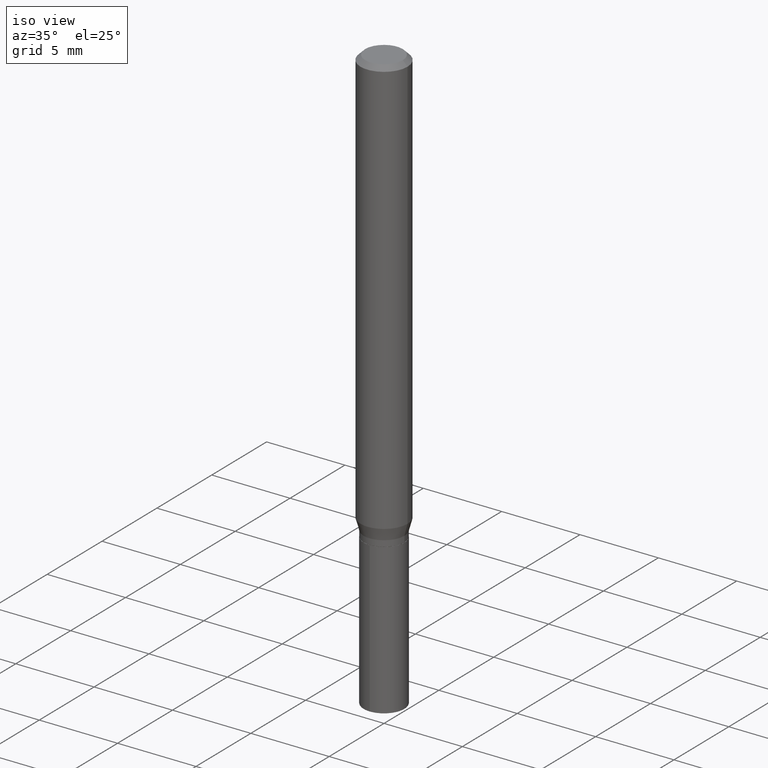
[diagram: clean part render]
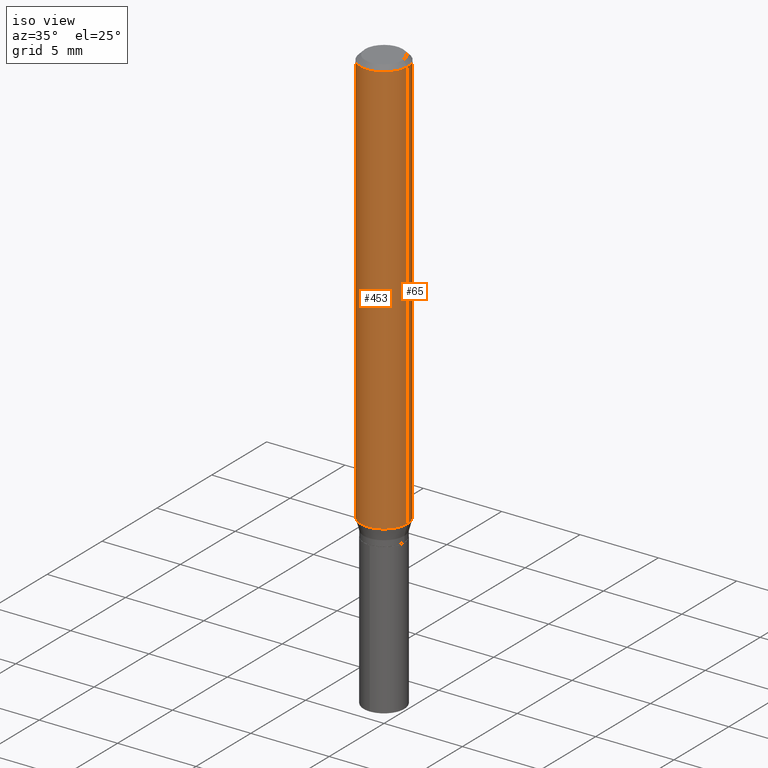
[diagram: same view with one multi-face feature highlighted, each face labeled with its STEP entity id]
A machine part, iso view. The highlighted faces form ONE feature: a constant-radius fillet chain: 2 tangent blend faces with common blend radius 1.4999 mm. The faces share edges in the B-rep.
Their STEP definitions:
[1] entity #453 (Cylinder):
#11 = AXIS2_PLACEMENT_3D ( 'NONE', #414, #449, #260 ) ;
#13 = ORIENTED_EDGE ( 'NONE', *, *, #384, .F. ) ;
#22 = DIRECTION ( 'NONE',  ( -2.445468806185136597E-29, 3.491481338843145583E-15, 1.000000000000000000 ) ) ;
#44 = CARTESIAN_POINT ( 'NONE',  ( 2.567261470165268831E-29, -3.665368984606243258E-15, -1.049803401160583904 ) ) ;
#47 = DIRECTION ( 'NONE',  ( 1.000000000000000000, -6.982962677686265133E-15, 0.000000000000000000 ) ) ;
#49 = EDGE_CURVE ( 'NONE', #295, #358, #78, .T. ) ;
#78 = LINE ( 'NONE', #486, #163 ) ;
#86 = DIRECTION ( 'NONE',  ( -2.445468806185136597E-29, 3.491481338843145583E-15, 1.000000000000000000 ) ) ;
#93 = CARTESIAN_POINT ( 'NONE',  ( -0.05905000000000013016, -3.245793499139903371E-15, -1.049803401160583904 ) ) ;
#129 = ORIENTED_EDGE ( 'NONE', *, *, #397, .F. ) ;
#163 = VECTOR ( 'NONE', #455, 39.37007874015748143 ) ;
#167 = CARTESIAN_POINT ( 'NONE',  ( -0.05905000000000006771, 4.195754854663396409E-16, -2.904631170795525045E-30 ) ) ;
#171 = EDGE_CURVE ( 'NONE', #335, #295, #225, .T. ) ;
#177 = DIRECTION ( 'NONE',  ( -2.445468806185136877E-29, 3.491481338843145188E-15, 1.000000000000000000 ) ) ;
#225 = CIRCLE ( 'NONE', #323, 0.05905000000000013016 ) ;
#249 = FACE_OUTER_BOUND ( 'NONE', #283, .T. ) ;
#250 = ORIENTED_EDGE ( 'NONE', *, *, #49, .T. ) ;
#260 = DIRECTION ( 'NONE',  ( 1.000000000000000000, -6.982962677686266711E-15, 4.876176775795936353E-29 ) ) ;
#283 = EDGE_LOOP ( 'NONE', ( #129, #481, #250, #13 ) ) ;
#286 = CYLINDRICAL_SURFACE ( 'NONE', #11, 0.05905000000000006771 ) ;
#294 = LINE ( 'NONE', #167, #363 ) ;
#295 = VERTEX_POINT ( 'NONE', #310 ) ;
#310 = CARTESIAN_POINT ( 'NONE',  ( 0.05905000000000013016, -4.077712930723618179E-15, -1.049803401160583904 ) ) ;
#323 = AXIS2_PLACEMENT_3D ( 'NONE', #44, #86, #47 ) ;
#335 = VERTEX_POINT ( 'NONE', #93 ) ;
#343 = AXIS2_PLACEMENT_3D ( 'NONE', #482, #22, #435 ) ;
#358 = VERTEX_POINT ( 'NONE', #476 ) ;
#363 = VECTOR ( 'NONE', #177, 39.37007874015748143 ) ;
#379 = CIRCLE ( 'NONE', #343, 0.05904999999999999832 ) ;
#384 = EDGE_CURVE ( 'NONE', #393, #358, #379, .T. ) ;
#393 = VERTEX_POINT ( 'NONE', #443 ) ;
#397 = EDGE_CURVE ( 'NONE', #335, #393, #294, .T. ) ;
#414 = CARTESIAN_POINT ( 'NONE',  ( 0.000000000000000000, 0.000000000000000000, 0.000000000000000000 ) ) ;
#435 = DIRECTION ( 'NONE',  ( 1.000000000000000000, -6.982962677686266711E-15, 0.000000000000000000 ) ) ;
#443 = CARTESIAN_POINT ( 'NONE',  ( -0.05904999999999999832, -1.433726204142650015E-15, -0.01181000000000007218 ) ) ;
#449 = DIRECTION ( 'NONE',  ( -2.445468806185136597E-29, 3.491481338843145583E-15, 1.000000000000000000 ) ) ;
#453 = ADVANCED_FACE ( 'NONE', ( #249 ), #286, .T. ) ;
#455 = DIRECTION ( 'NONE',  ( -2.445468806185136877E-29, 3.491481338843145188E-15, 1.000000000000000000 ) ) ;
#476 = CARTESIAN_POINT ( 'NONE',  ( 0.05904999999999999832, -4.535783407291118600E-16, -0.01181000000000007218 ) ) ;
#481 = ORIENTED_EDGE ( 'NONE', *, *, #171, .T. ) ;
#482 = CARTESIAN_POINT ( 'NONE',  ( 2.888098660104664204E-31, -4.123439461173780263E-17, -0.01181000000000007218 ) ) ;
#486 = CARTESIAN_POINT ( 'NONE',  ( 0.05905000000000006771, -4.123439461173745257E-16, 2.879382386107503723E-30 ) ) ;
[2] entity #65 (Cylinder):
#6 = CIRCLE ( 'NONE', #488, 0.05904999999999999832 ) ;
#25 = ORIENTED_EDGE ( 'NONE', *, *, #49, .F. ) ;
#27 = ORIENTED_EDGE ( 'NONE', *, *, #43, .T. ) ;
#43 = EDGE_CURVE ( 'NONE', #295, #335, #142, .T. ) ;
#49 = EDGE_CURVE ( 'NONE', #295, #358, #78, .T. ) ;
#65 = ADVANCED_FACE ( 'NONE', ( #450 ), #417, .T. ) ;
#72 = CARTESIAN_POINT ( 'NONE',  ( 0.000000000000000000, 0.000000000000000000, 0.000000000000000000 ) ) ;
#78 = LINE ( 'NONE', #486, #163 ) ;
#93 = CARTESIAN_POINT ( 'NONE',  ( -0.05905000000000013016, -3.245793499139903371E-15, -1.049803401160583904 ) ) ;
#132 = CARTESIAN_POINT ( 'NONE',  ( 2.888098660104664204E-31, -4.123439461173780263E-17, -0.01181000000000007218 ) ) ;
#142 = CIRCLE ( 'NONE', #487, 0.05905000000000013016 ) ;
#163 = VECTOR ( 'NONE', #455, 39.37007874015748143 ) ;
#167 = CARTESIAN_POINT ( 'NONE',  ( -0.05905000000000006771, 4.195754854663396409E-16, -2.904631170795525045E-30 ) ) ;
#168 = EDGE_LOOP ( 'NONE', ( #27, #372, #292, #25 ) ) ;
#177 = DIRECTION ( 'NONE',  ( -2.445468806185136877E-29, 3.491481338843145188E-15, 1.000000000000000000 ) ) ;
#181 = DIRECTION ( 'NONE',  ( 1.000000000000000000, -6.982962677686265133E-15, 0.000000000000000000 ) ) ;
#191 = DIRECTION ( 'NONE',  ( -2.445468806185136597E-29, 3.491481338843145583E-15, 1.000000000000000000 ) ) ;
#224 = DIRECTION ( 'NONE',  ( 1.000000000000000000, -6.982962677686266711E-15, 4.876176775795936353E-29 ) ) ;
#244 = DIRECTION ( 'NONE',  ( -2.445468806185136597E-29, 3.491481338843145583E-15, 1.000000000000000000 ) ) ;
#292 = ORIENTED_EDGE ( 'NONE', *, *, #430, .F. ) ;
#294 = LINE ( 'NONE', #167, #363 ) ;
#295 = VERTEX_POINT ( 'NONE', #310 ) ;
#309 = DIRECTION ( 'NONE',  ( -2.445468806185136597E-29, 3.491481338843145583E-15, 1.000000000000000000 ) ) ;
#310 = CARTESIAN_POINT ( 'NONE',  ( 0.05905000000000013016, -4.077712930723618179E-15, -1.049803401160583904 ) ) ;
#313 = AXIS2_PLACEMENT_3D ( 'NONE', #72, #191, #224 ) ;
#335 = VERTEX_POINT ( 'NONE', #93 ) ;
#358 = VERTEX_POINT ( 'NONE', #476 ) ;
#363 = VECTOR ( 'NONE', #177, 39.37007874015748143 ) ;
#372 = ORIENTED_EDGE ( 'NONE', *, *, #397, .T. ) ;
#393 = VERTEX_POINT ( 'NONE', #443 ) ;
#397 = EDGE_CURVE ( 'NONE', #335, #393, #294, .T. ) ;
#417 = CYLINDRICAL_SURFACE ( 'NONE', #313, 0.05905000000000006771 ) ;
#430 = EDGE_CURVE ( 'NONE', #358, #393, #6, .T. ) ;
#443 = CARTESIAN_POINT ( 'NONE',  ( -0.05904999999999999832, -1.433726204142650015E-15, -0.01181000000000007218 ) ) ;
#450 = FACE_OUTER_BOUND ( 'NONE', #168, .T. ) ;
#455 = DIRECTION ( 'NONE',  ( -2.445468806185136877E-29, 3.491481338843145188E-15, 1.000000000000000000 ) ) ;
#457 = CARTESIAN_POINT ( 'NONE',  ( 2.567261470165268831E-29, -3.665368984606243258E-15, -1.049803401160583904 ) ) ;
#472 = DIRECTION ( 'NONE',  ( 1.000000000000000000, -6.982962677686266711E-15, 0.000000000000000000 ) ) ;
#476 = CARTESIAN_POINT ( 'NONE',  ( 0.05904999999999999832, -4.535783407291118600E-16, -0.01181000000000007218 ) ) ;
#486 = CARTESIAN_POINT ( 'NONE',  ( 0.05905000000000006771, -4.123439461173745257E-16, 2.879382386107503723E-30 ) ) ;
#487 = AXIS2_PLACEMENT_3D ( 'NONE', #457, #309, #181 ) ;
#488 = AXIS2_PLACEMENT_3D ( 'NONE', #132, #244, #472 ) ;